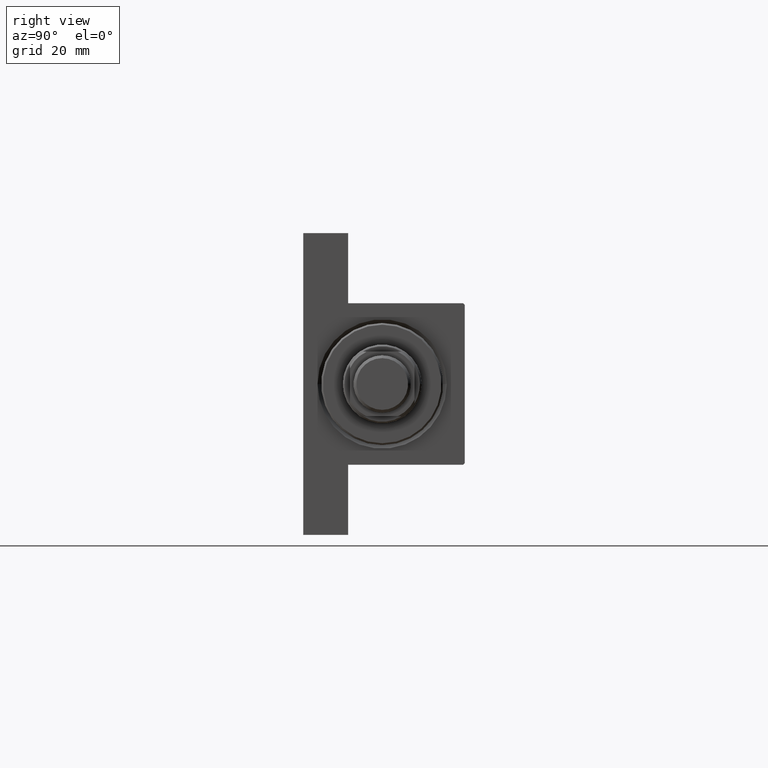
[diagram: clean part render]
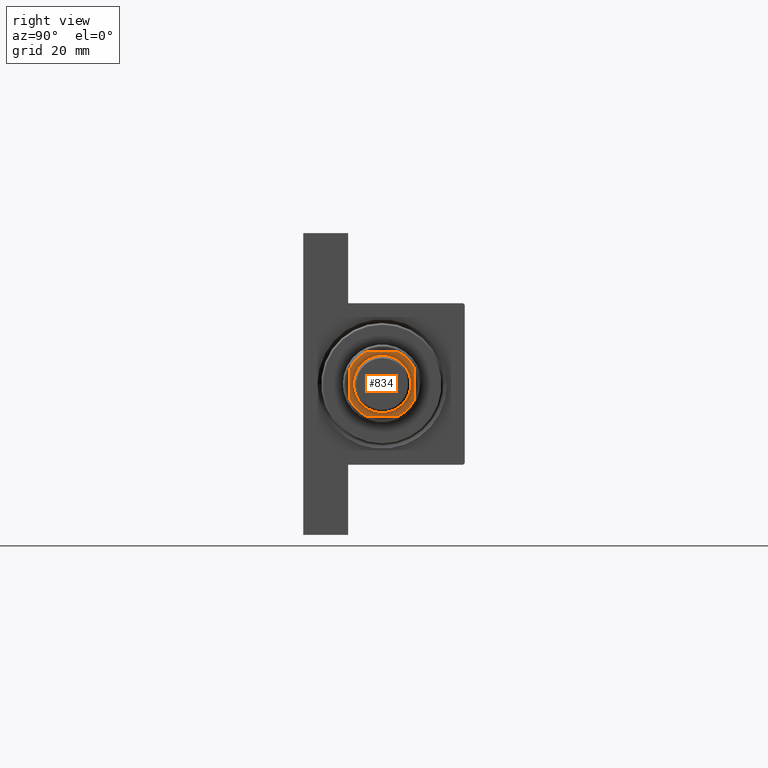
[diagram: same view with one face highlighted and labeled with its STEP entity id]
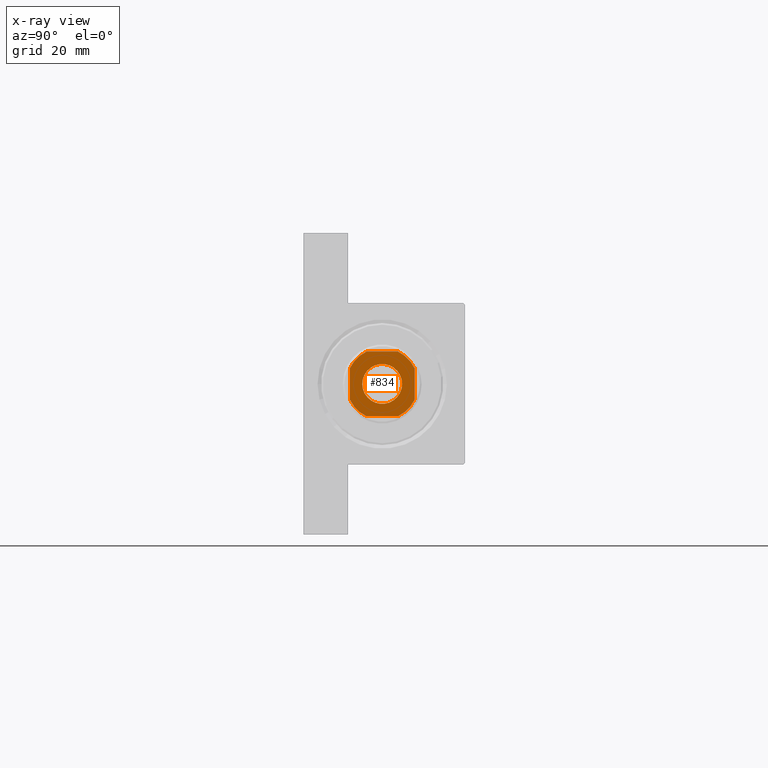
[diagram: x-ray of the same camera — body ghosted, the highlighted face saturated]
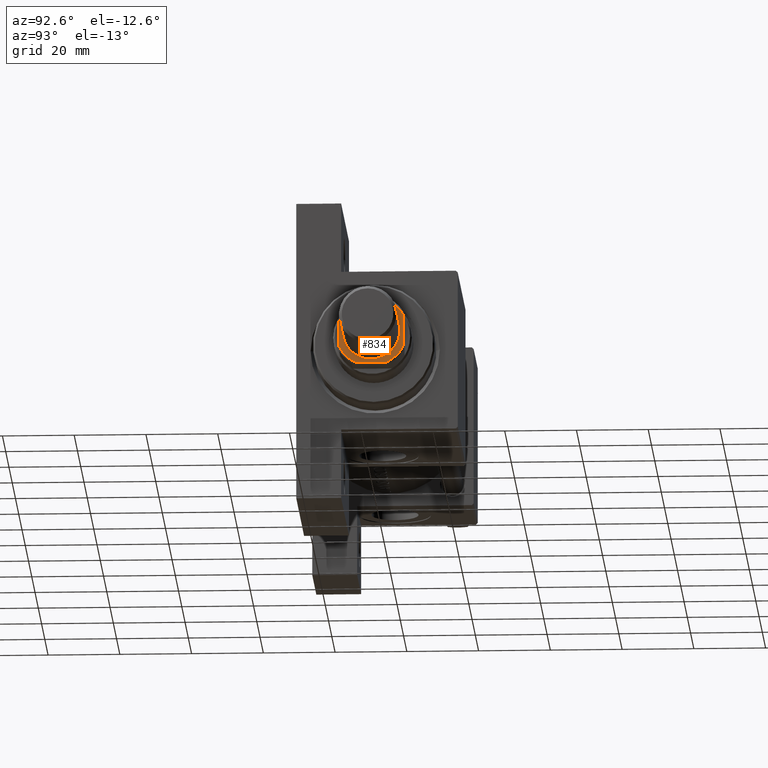
[diagram: same view with one face highlighted and labeled with its STEP entity id]
A machine part, right view. The second image highlights one B-rep face of the part: STEP entity #834.
The next image is the same camera in x-ray: the body ghosted, the highlighted face saturated — about 0% of this face is hidden behind the body in this view.
A second angle (auxiliary view) of the same face is appended — the face is thin or edge-on in the first view.
In plain terms, the highlighted planar face has unit normal (1, 0, 0).
Its self-contained STEP definition (entity closure, byte-faithful):
#154 = AXIS2_PLACEMENT_3D ( 'NONE', #15852, #16089, #789 ) ;
#690 = DIRECTION ( 'NONE',  ( -0.000000000000000000, 0.000000000000000000, 1.000000000000000000 ) ) ;
#789 = DIRECTION ( 'NONE',  ( 1.000000000000000000, 0.000000000000000000, 0.000000000000000000 ) ) ;
#834 = ADVANCED_FACE ( 'NONE', ( #12200, #34056 ), #44767, .T. ) ;
#1482 = ORIENTED_EDGE ( 'NONE', *, *, #3304, .T. ) ;
#2230 = EDGE_CURVE ( 'NONE', #23249, #33053, #5066, .T. ) ;
#3046 = CARTESIAN_POINT ( 'NONE',  ( 5.550000000000013145, 0.000000000000000000, 123.0000000000000000 ) ) ;
#3304 = EDGE_CURVE ( 'NONE', #39460, #23249, #30526, .T. ) ;
#3582 = EDGE_CURVE ( 'NONE', #31761, #42889, #36725, .T. ) ;
#4326 = CARTESIAN_POINT ( 'NONE',  ( -5.550000000000013145, 6.796789735267826558E-16, 123.0000000000000000 ) ) ;
#4355 = CARTESIAN_POINT ( 'NONE',  ( 0.000000000000000000, 0.000000000000000000, 123.0000000000000000 ) ) ;
#5047 = ORIENTED_EDGE ( 'NONE', *, *, #43776, .T. ) ;
#5066 = LINE ( 'NONE', #35561, #45233 ) ;
#5084 = DIRECTION ( 'NONE',  ( -1.000000000000000000, -0.000000000000000000, -0.000000000000000000 ) ) ;
#7010 = VECTOR ( 'NONE', #43426, 1000.000000000000000 ) ;
#7835 = AXIS2_PLACEMENT_3D ( 'NONE', #26749, #15593, #44081 ) ;
#8837 = ORIENTED_EDGE ( 'NONE', *, *, #47553, .T. ) ;
#8869 = CARTESIAN_POINT ( 'NONE',  ( 0.000000000000000000, 0.000000000000000000, 123.0000000000000000 ) ) ;
#9384 = CIRCLE ( 'NONE', #36515, 9.999999999999998224 ) ;
#9719 = VERTEX_POINT ( 'NONE', #39386 ) ;
#9843 = DIRECTION ( 'NONE',  ( 1.000000000000000000, 0.000000000000000000, 0.000000000000000000 ) ) ;
#10084 = ORIENTED_EDGE ( 'NONE', *, *, #38382, .T. ) ;
#12200 = FACE_BOUND ( 'NONE', #36246, .T. ) ;
#12377 = EDGE_CURVE ( 'NONE', #37515, #39460, #47076, .T. ) ;
#12841 = EDGE_CURVE ( 'NONE', #9719, #37515, #40371, .T. ) ;
#13299 = CARTESIAN_POINT ( 'NONE',  ( 0.000000000000000000, 0.000000000000000000, 123.0000000000000000 ) ) ;
#13639 = ORIENTED_EDGE ( 'NONE', *, *, #26186, .T. ) ;
#13697 = DIRECTION ( 'NONE',  ( 1.000000000000000000, 0.000000000000000000, 0.000000000000000000 ) ) ;
#13790 = DIRECTION ( 'NONE',  ( 1.000000000000000000, 0.000000000000000000, 0.000000000000000000 ) ) ;
#14343 = EDGE_CURVE ( 'NONE', #33053, #27568, #9384, .T. ) ;
#15457 = ORIENTED_EDGE ( 'NONE', *, *, #14343, .T. ) ;
#15593 = DIRECTION ( 'NONE',  ( -0.000000000000000000, 0.000000000000000000, 1.000000000000000000 ) ) ;
#15852 = CARTESIAN_POINT ( 'NONE',  ( 0.000000000000000000, 0.000000000000000000, 123.0000000000000000 ) ) ;
#16089 = DIRECTION ( 'NONE',  ( -0.000000000000000000, 0.000000000000000000, 1.000000000000000000 ) ) ;
#16633 = DIRECTION ( 'NONE',  ( 1.000000000000000000, 0.000000000000000000, 0.000000000000000000 ) ) ;
#17180 = DIRECTION ( 'NONE',  ( 1.000000000000000000, 0.000000000000000000, 0.000000000000000000 ) ) ;
#17360 = AXIS2_PLACEMENT_3D ( 'NONE', #39179, #32128, #13697 ) ;
#17448 = CARTESIAN_POINT ( 'NONE',  ( -9.000000000000003553, 8.999999999999998224, 123.0000000000000000 ) ) ;
#17849 = CARTESIAN_POINT ( 'NONE',  ( 8.999999999999998224, 4.358898943540600257, 123.0000000000000000 ) ) ;
#18555 = EDGE_LOOP ( 'NONE', ( #10084, #8837, #13639, #22137, #31917, #1482, #24044, #15457 ) ) ;
#18882 = AXIS2_PLACEMENT_3D ( 'NONE', #21007, #43852, #24895 ) ;
#19633 = AXIS2_PLACEMENT_3D ( 'NONE', #8869, #45534, #16633 ) ;
#19833 = CARTESIAN_POINT ( 'NONE',  ( 8.999999999999996447, 8.999999999999998224, 123.0000000000000000 ) ) ;
#20392 = AXIS2_PLACEMENT_3D ( 'NONE', #4355, #690, #17180 ) ;
#21007 = CARTESIAN_POINT ( 'NONE',  ( 0.000000000000000000, 0.000000000000000000, 123.0000000000000000 ) ) ;
#22137 = ORIENTED_EDGE ( 'NONE', *, *, #12841, .T. ) ;
#23249 = VERTEX_POINT ( 'NONE', #25305 ) ;
#23348 = VECTOR ( 'NONE', #41711, 1000.000000000000000 ) ;
#23511 = LINE ( 'NONE', #38321, #39927 ) ;
#24044 = ORIENTED_EDGE ( 'NONE', *, *, #2230, .T. ) ;
#24281 = CIRCLE ( 'NONE', #19633, 5.550000000000013145 ) ;
#24437 = ORIENTED_EDGE ( 'NONE', *, *, #3582, .T. ) ;
#24895 = DIRECTION ( 'NONE',  ( 1.000000000000000000, 0.000000000000000000, 0.000000000000000000 ) ) ;
#25305 = CARTESIAN_POINT ( 'NONE',  ( -4.358898943540667759, -9.000000000000001776, 123.0000000000000000 ) ) ;
#26186 = EDGE_CURVE ( 'NONE', #30162, #9719, #23511, .T. ) ;
#26749 = CARTESIAN_POINT ( 'NONE',  ( 0.000000000000000000, 0.000000000000000000, 123.0000000000000000 ) ) ;
#27568 = VERTEX_POINT ( 'NONE', #45516 ) ;
#29730 = CIRCLE ( 'NONE', #20392, 9.999999999999966249 ) ;
#30162 = VERTEX_POINT ( 'NONE', #36201 ) ;
#30526 = CIRCLE ( 'NONE', #18882, 9.999999999999998224 ) ;
#31761 = VERTEX_POINT ( 'NONE', #3046 ) ;
#31825 = VERTEX_POINT ( 'NONE', #17849 ) ;
#31917 = ORIENTED_EDGE ( 'NONE', *, *, #12377, .T. ) ;
#32128 = DIRECTION ( 'NONE',  ( 0.000000000000000000, -0.000000000000000000, -1.000000000000000000 ) ) ;
#33053 = VERTEX_POINT ( 'NONE', #40142 ) ;
#33148 = CARTESIAN_POINT ( 'NONE',  ( -9.000000000000003553, -4.358898943540665094, 123.0000000000000000 ) ) ;
#34056 = FACE_OUTER_BOUND ( 'NONE', #18555, .T. ) ;
#35561 = CARTESIAN_POINT ( 'NONE',  ( -9.000000000000001776, -9.000000000000001776, 123.0000000000000000 ) ) ;
#36201 = CARTESIAN_POINT ( 'NONE',  ( 4.358898943540597593, 8.999999999999998224, 123.0000000000000000 ) ) ;
#36246 = EDGE_LOOP ( 'NONE', ( #24437, #5047 ) ) ;
#36515 = AXIS2_PLACEMENT_3D ( 'NONE', #13299, #46557, #13790 ) ;
#36725 = CIRCLE ( 'NONE', #17360, 5.550000000000013145 ) ;
#37515 = VERTEX_POINT ( 'NONE', #46056 ) ;
#38321 = CARTESIAN_POINT ( 'NONE',  ( -9.000000000000003553, 8.999999999999998224, 123.0000000000000000 ) ) ;
#38382 = EDGE_CURVE ( 'NONE', #27568, #31825, #42664, .T. ) ;
#39179 = CARTESIAN_POINT ( 'NONE',  ( 0.000000000000000000, 0.000000000000000000, 123.0000000000000000 ) ) ;
#39386 = CARTESIAN_POINT ( 'NONE',  ( -4.358898943540671311, 8.999999999999998224, 123.0000000000000000 ) ) ;
#39460 = VERTEX_POINT ( 'NONE', #33148 ) ;
#39927 = VECTOR ( 'NONE', #5084, 1000.000000000000000 ) ;
#40142 = CARTESIAN_POINT ( 'NONE',  ( 4.358898943540667759, -9.000000000000001776, 123.0000000000000000 ) ) ;
#40371 = CIRCLE ( 'NONE', #7835, 9.999999999999996447 ) ;
#41711 = DIRECTION ( 'NONE',  ( -1.927470528863119049E-16, 1.000000000000000000, -0.000000000000000000 ) ) ;
#42664 = LINE ( 'NONE', #19833, #23348 ) ;
#42889 = VERTEX_POINT ( 'NONE', #4326 ) ;
#43426 = DIRECTION ( 'NONE',  ( 9.637352644315595243E-17, -1.000000000000000000, 0.000000000000000000 ) ) ;
#43776 = EDGE_CURVE ( 'NONE', #42889, #31761, #24281, .T. ) ;
#43852 = DIRECTION ( 'NONE',  ( -0.000000000000000000, 0.000000000000000000, 1.000000000000000000 ) ) ;
#44081 = DIRECTION ( 'NONE',  ( 1.000000000000000000, 0.000000000000000000, 0.000000000000000000 ) ) ;
#44767 = PLANE ( 'NONE',  #154 ) ;
#45233 = VECTOR ( 'NONE', #9843, 1000.000000000000000 ) ;
#45516 = CARTESIAN_POINT ( 'NONE',  ( 8.999999999999998224, -4.358898943540672200, 123.0000000000000000 ) ) ;
#45534 = DIRECTION ( 'NONE',  ( 0.000000000000000000, -0.000000000000000000, -1.000000000000000000 ) ) ;
#46056 = CARTESIAN_POINT ( 'NONE',  ( -9.000000000000003553, 4.358898943540662430, 123.0000000000000000 ) ) ;
#46557 = DIRECTION ( 'NONE',  ( -0.000000000000000000, 0.000000000000000000, 1.000000000000000000 ) ) ;
#47076 = LINE ( 'NONE', #17448, #7010 ) ;
#47553 = EDGE_CURVE ( 'NONE', #31825, #30162, #29730, .T. ) ;